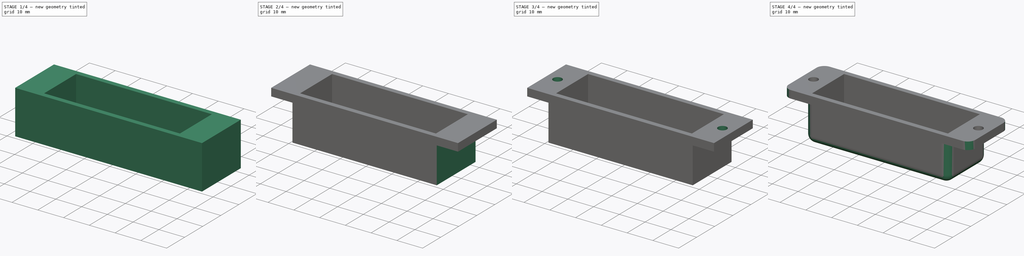
[diagram: build sequence overview — one tinted view per stage of 4, left to right]
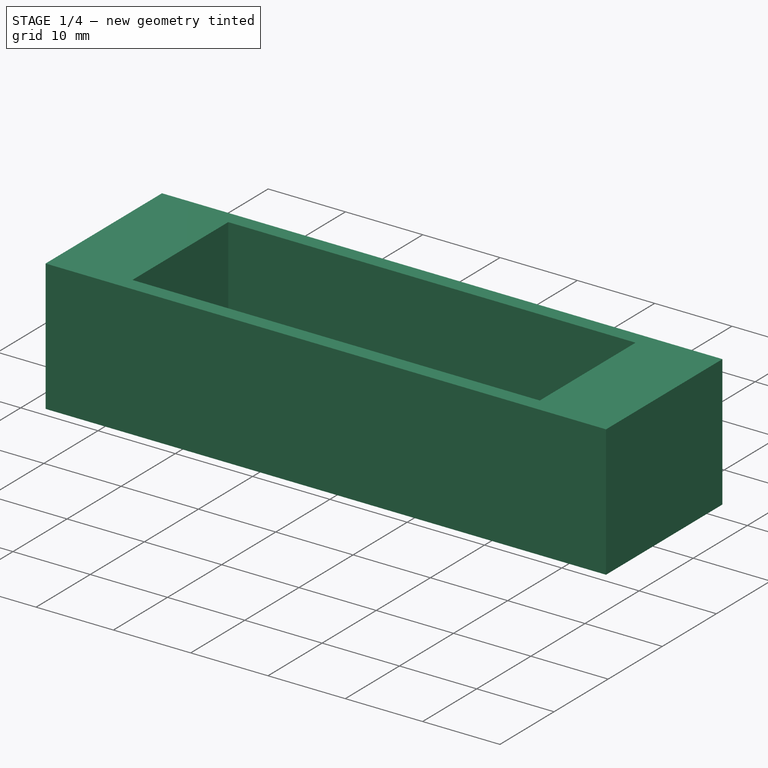
[diagram: stage 1 of 4 — iso view after this stage's code; geometry added in this stage tinted green]
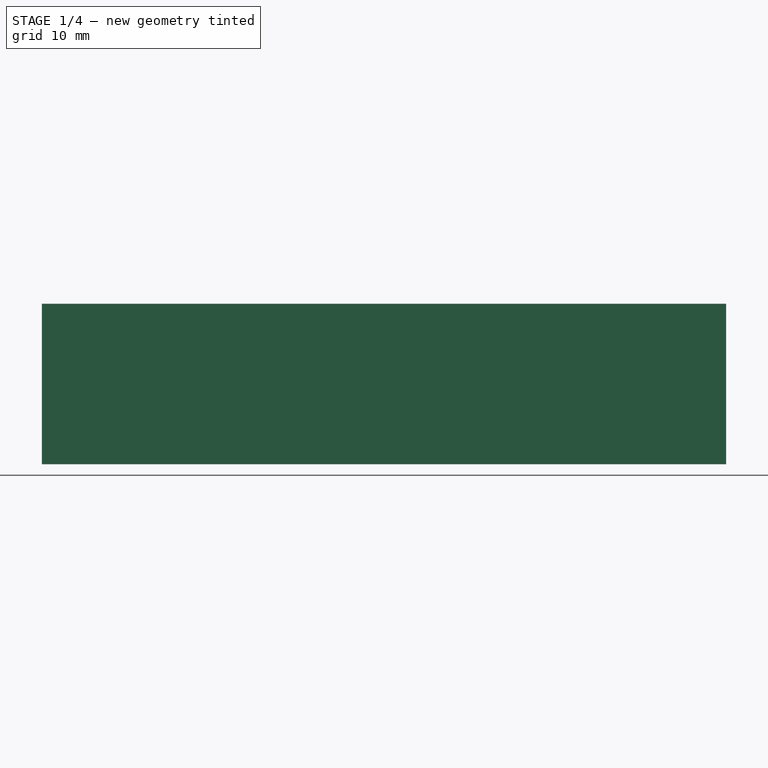
[diagram: stage 1 of 4 — front view after this stage's code; geometry added in this stage tinted green]
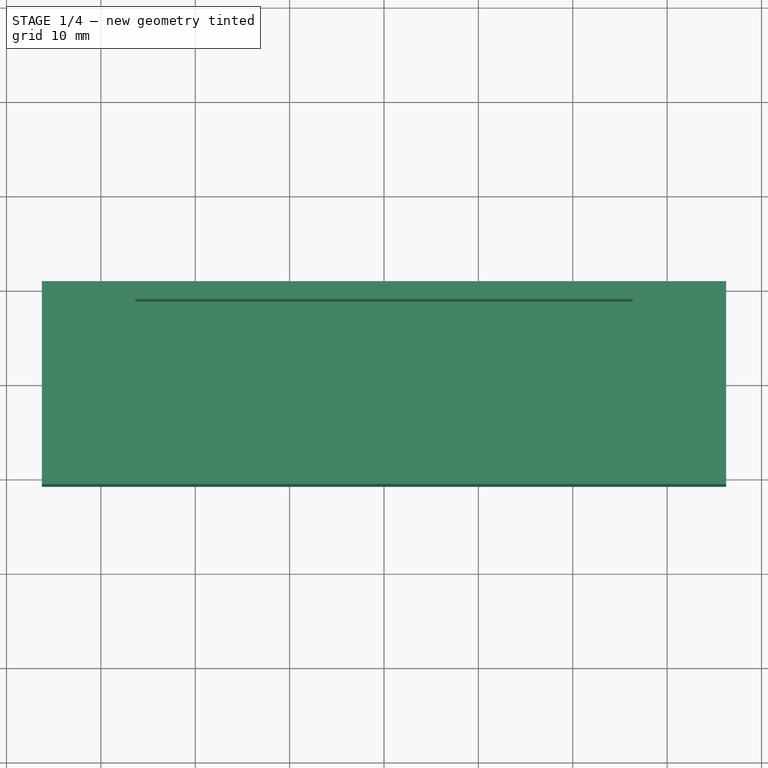
[diagram: stage 1 of 4 — top view after this stage's code; geometry added in this stage tinted green]
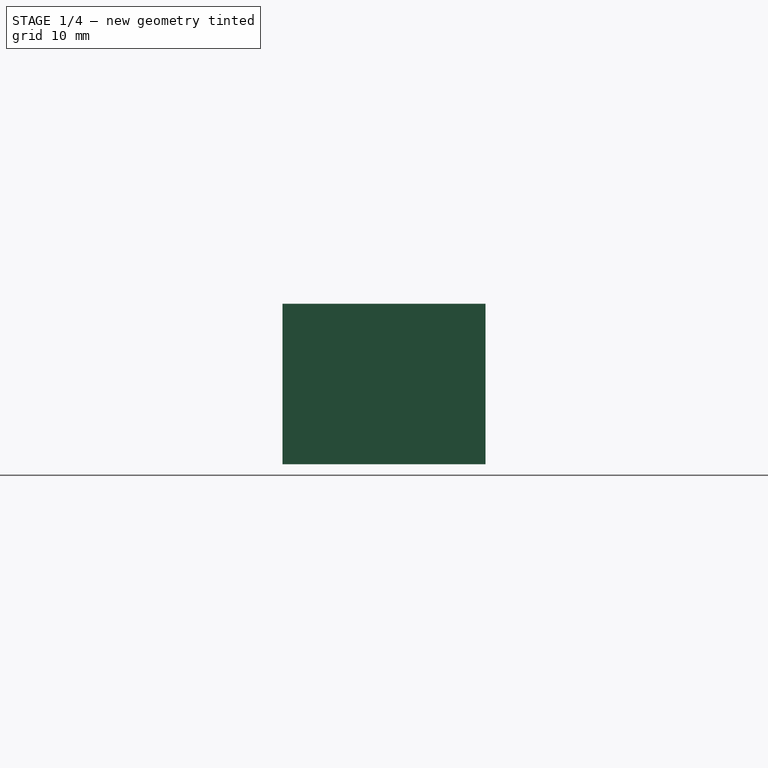
[diagram: stage 1 of 4 — right view after this stage's code; geometry added in this stage tinted green]
FCSTD DOCUMENT  (FreeCAD 0.16R6707 (Git))
Label: switch bracket
License: All rights reserved
LicenseURL: http://en.wikipedia.org/wiki/All_rights_reserved
objects: Sketcher::SketchObject×6, PartDesign::Pocket×4, PartDesign::Fillet×3, PartDesign::Pad×2
note: 21 computed .brp shape members not serialized (recipe doc carries the construction recipe); baked Part::Feature solids carry a one-line shape summary decoded from their .brp

FEATURE [Sketcher::SketchObject] Sketch
  sketch-geometry (4):
    g0: LineSegment StartX=-36.25 StartY=10.75 StartZ=0 EndX=36.25 EndY=10.75 EndZ=0
    g1: LineSegment StartX=36.25 StartY=10.75 StartZ=0 EndX=36.25 EndY=-10.75 EndZ=0
    g2: LineSegment StartX=36.25 StartY=-10.75 StartZ=0 EndX=-36.25 EndY=-10.75 EndZ=0
    g3: LineSegment StartX=-36.25 StartY=-10.75 StartZ=0 EndX=-36.25 EndY=10.75 EndZ=0
  constraints (12):
    c: Coincident(g0,g1)
    c: Coincident(g1,g2)
    c: Coincident(g2,g3)
    c: Coincident(g3,g0)
    c: Horizontal(g0)
    c: Horizontal(g2)
    c: Vertical(g1)
    c: Vertical(g3)
    c: DistanceX(g0,g0) = 72.5
    c: Symmetric(g0,g0,g-2)
    c: DistanceY(g3,g3) = 21.5
    c: Symmetric(g2,g0,g-1)
FEATURE [PartDesign::Pad] Pad
  Length = 17
  Length2 = 100
  Sketch = -> Sketch
  Type = 0
FEATURE [Sketcher::SketchObject] Sketch001
  Placement = pos=(0,0,17) rot=(0,0,1;0rad)
  Support = -> Pad [Face6]
  sketch-geometry (4):
    g0: LineSegment StartX=-26.35 StartY=8.85 StartZ=0 EndX=26.35 EndY=8.85 EndZ=0
    g1: LineSegment StartX=26.35 StartY=8.85 StartZ=0 EndX=26.35 EndY=-8.85 EndZ=0
    g2: LineSegment StartX=26.35 StartY=-8.85 StartZ=0 EndX=-26.35 EndY=-8.85 EndZ=0
    g3: LineSegment StartX=-26.35 StartY=-8.85 StartZ=0 EndX=-26.35 EndY=8.85 EndZ=0
  constraints (12):
    c: Coincident(g0,g1)
    c: Coincident(g1,g2)
    c: Coincident(g2,g3)
    c: Coincident(g3,g0)
    c: Horizontal(g0)
    c: Horizontal(g2)
    c: Vertical(g1)
    c: Vertical(g3)
    c: Symmetric(g0,g0,g-2)
    c: Symmetric(g0,g2,g-1)
    c: DistanceX(g0,g0) = 52.7
    c: DistanceY(g3,g3) = 17.7
FEATURE [PartDesign::Pocket] Pocket
  Length = 15
  Sketch = -> Sketch001
  Type = 0
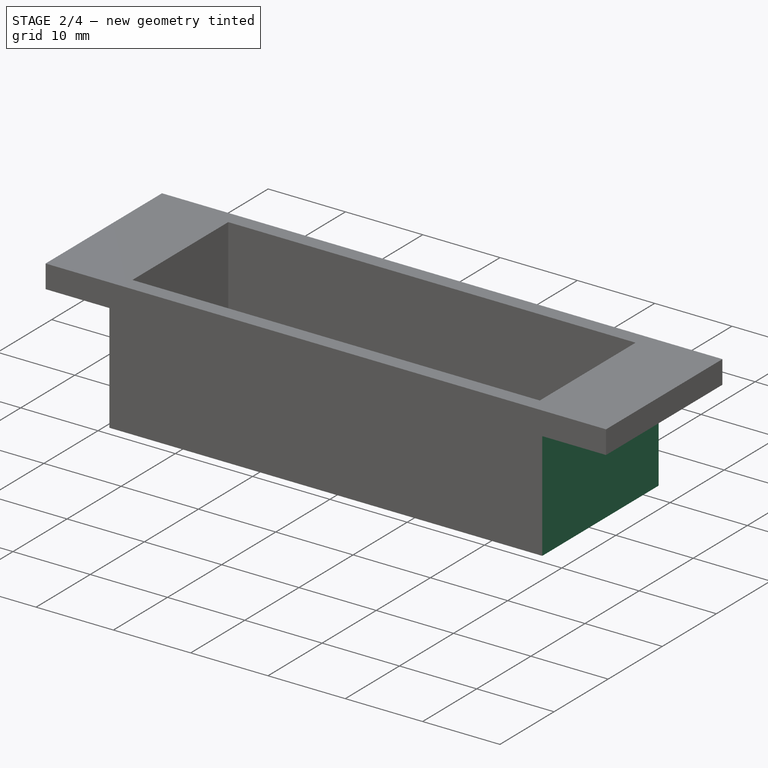
[diagram: stage 2 of 4 — iso view after this stage's code; geometry added in this stage tinted green]
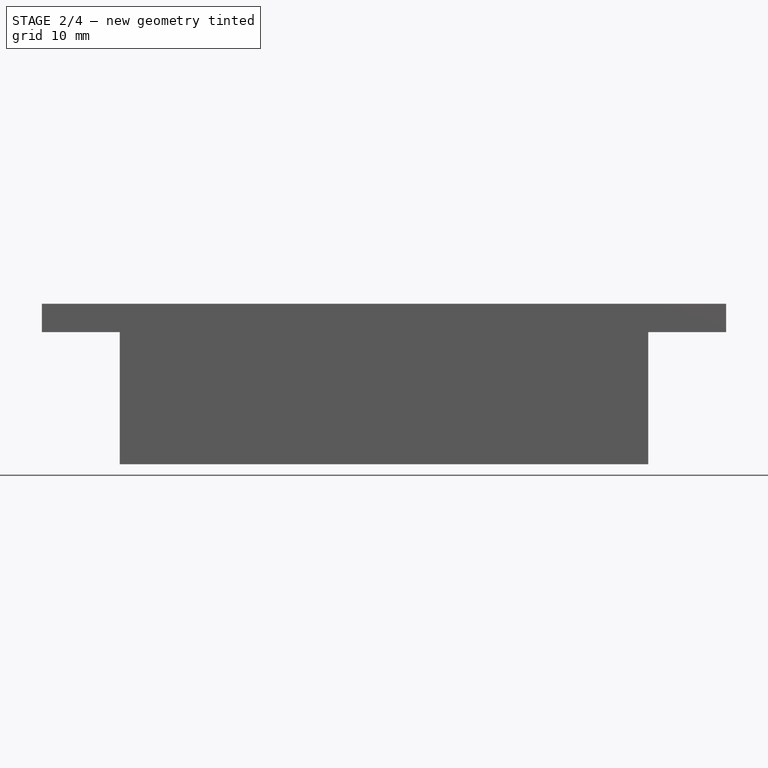
[diagram: stage 2 of 4 — front view after this stage's code; geometry added in this stage tinted green]
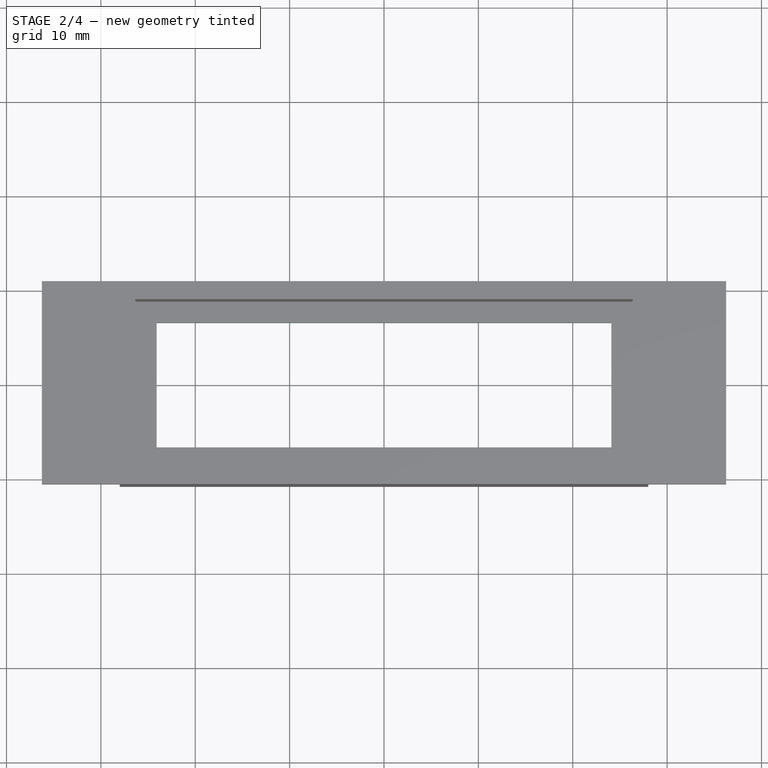
[diagram: stage 2 of 4 — top view after this stage's code; geometry added in this stage tinted green]
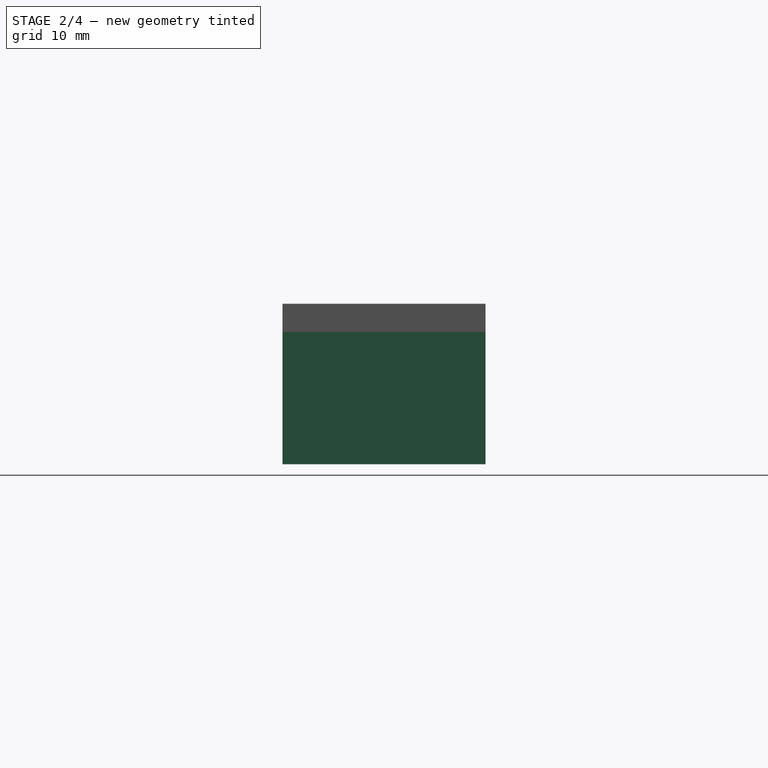
[diagram: stage 2 of 4 — right view after this stage's code; geometry added in this stage tinted green]
FEATURE [Sketcher::SketchObject] Sketch002
  Placement = pos=(0,0,2) rot=(0,0,1;0rad)
  Support = -> Pocket [Face11]
  sketch-geometry (4):
    g0: LineSegment StartX=-24.1 StartY=6.6 StartZ=0 EndX=24.1 EndY=6.6 EndZ=0
    g1: LineSegment StartX=24.1 StartY=6.6 StartZ=0 EndX=24.1 EndY=-6.6 EndZ=0
    g2: LineSegment StartX=24.1 StartY=-6.6 StartZ=0 EndX=-24.1 EndY=-6.6 EndZ=0
    g3: LineSegment StartX=-24.1 StartY=-6.6 StartZ=0 EndX=-24.1 EndY=6.6 EndZ=0
  constraints (12):
    c: Coincident(g0,g1)
    c: Coincident(g1,g2)
    c: Coincident(g2,g3)
    c: Coincident(g3,g0)
    c: Horizontal(g0)
    c: Horizontal(g2)
    c: Vertical(g1)
    c: Vertical(g3)
    c: Symmetric(g0,g0,g-2)
    c: Symmetric(g0,g2,g-1)
    c: DistanceX(g0,g0) = 48.2
    c: DistanceY(g3,g3) = 13.2
FEATURE [PartDesign::Pocket] Pocket001
  Length = 5
  Sketch = -> Sketch002
  Type = 0
FEATURE [Sketcher::SketchObject] Sketch003
  Placement = pos=(0,0,0) rot=(1,0,0;3.14159rad)
  Support = -> Pocket001 [Face4]
  sketch-geometry (8):
    g0: LineSegment StartX=-38 StartY=14 StartZ=0 EndX=-28 EndY=14 EndZ=0
    g1: LineSegment StartX=-28 StartY=14 StartZ=0 EndX=-28 EndY=-14.5347 EndZ=0
    g2: LineSegment StartX=-28 StartY=-14.5347 StartZ=0 EndX=-38 EndY=-14.5347 EndZ=0
    g3: LineSegment StartX=-38 StartY=-14.5347 StartZ=0 EndX=-38 EndY=14 EndZ=0
    g4: LineSegment StartX=28 StartY=14 StartZ=0 EndX=39.2029 EndY=14 EndZ=0
    g5: LineSegment StartX=39.2029 StartY=14 StartZ=0 EndX=39.2029 EndY=-14.538 EndZ=0
    g6: LineSegment StartX=39.2029 StartY=-14.538 StartZ=0 EndX=28 EndY=-14.538 EndZ=0
    g7: LineSegment StartX=28 StartY=-14.538 StartZ=0 EndX=28 EndY=14 EndZ=0
  constraints (16):
    c: Coincident(g0,g1)
    c: Coincident(g1,g2)
    c: Coincident(g2,g3)
    c: Coincident(g3,g0)
    c: Horizontal(g0)
    c: Horizontal(g2)
    c: Vertical(g1)
    c: Vertical(g3)
    c: Coincident(g4,g5)
    c: Coincident(g5,g6)
    c: Coincident(g6,g7)
    c: Coincident(g7,g4)
    c: Horizontal(g4)
    c: Horizontal(g6)
    c: Vertical(g5)
    c: Vertical(g7)
FEATURE [PartDesign::Pocket] Pocket002
  Length = 14
  Sketch = -> Sketch003
  Type = 0
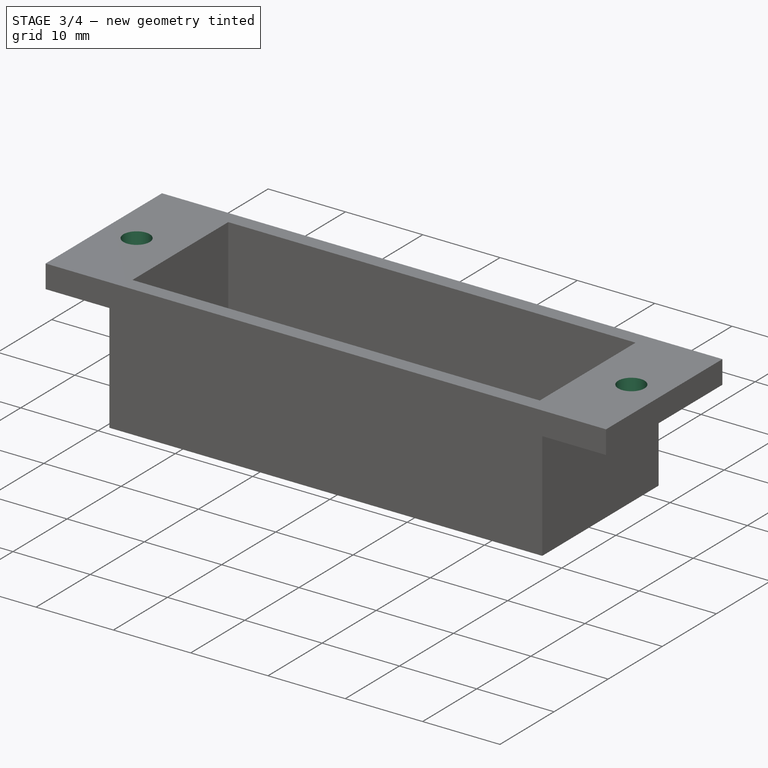
[diagram: stage 3 of 4 — iso view after this stage's code; geometry added in this stage tinted green]
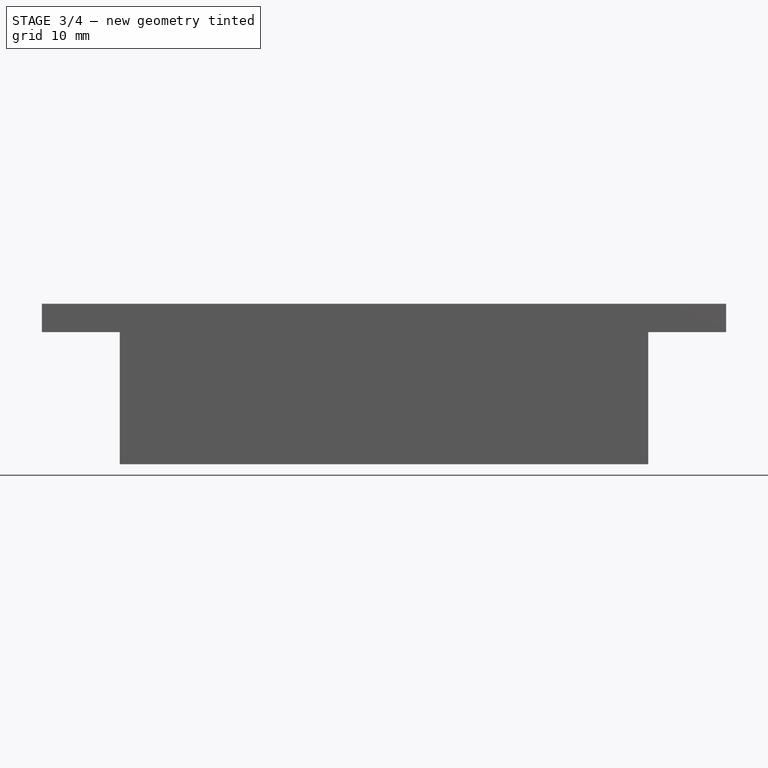
[diagram: stage 3 of 4 — front view after this stage's code; geometry added in this stage tinted green]
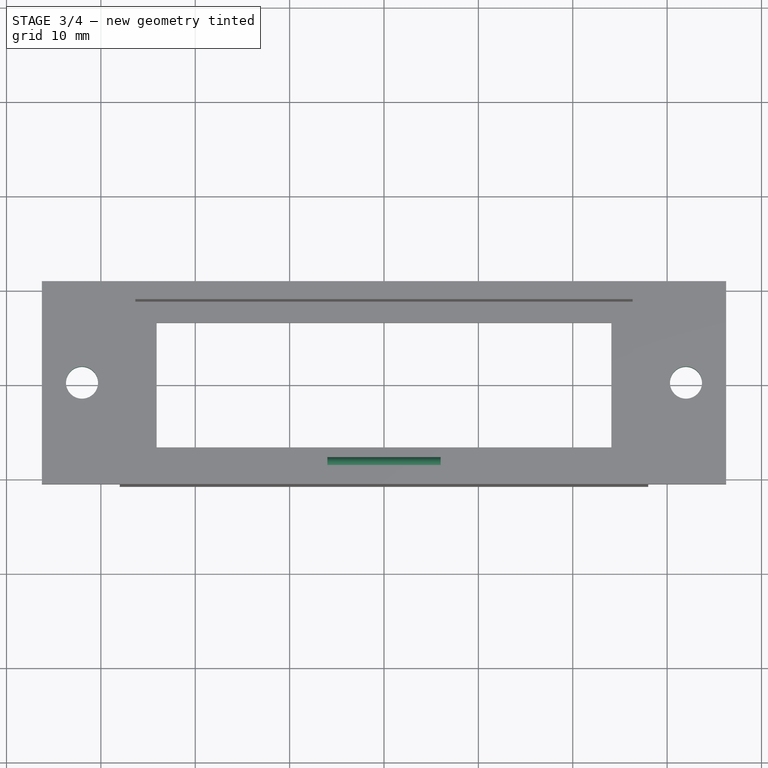
[diagram: stage 3 of 4 — top view after this stage's code; geometry added in this stage tinted green]
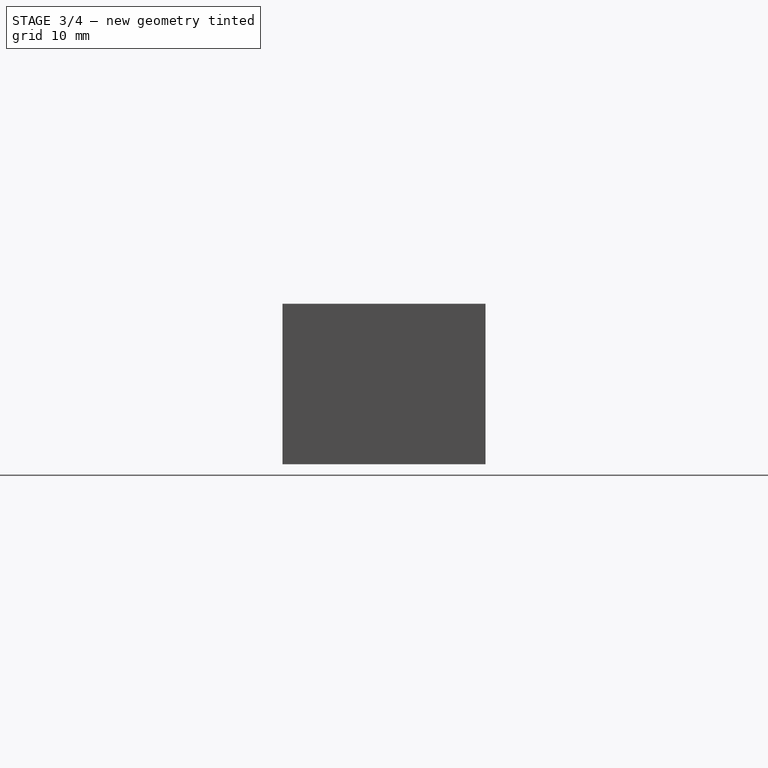
[diagram: stage 3 of 4 — right view after this stage's code; geometry added in this stage tinted green]
FEATURE [Sketcher::SketchObject] Sketch004
  Placement = pos=(0,0,14) rot=(1,0,0;3.14159rad)
  Support = -> Pocket002 [Face6]
  sketch-geometry (2):
    g0: Circle CenterX=32 CenterY=0 CenterZ=0 NormalX=0 NormalY=0 NormalZ=1 Radius=1.7
    g1: Circle CenterX=-32 CenterY=0 CenterZ=0 NormalX=0 NormalY=0 NormalZ=1 Radius=1.7
  constraints (4):
    c: PointOnObject(g0,g-1)
    c: PointOnObject(g1,g-1)
    c: Radius(g1) = 1.7
    c: Equal(g1,g0)
FEATURE [PartDesign::Pocket] Pocket003
  Length = 5
  Sketch = -> Sketch004
  Type = 0
FEATURE [Sketcher::SketchObject] Sketch005
  ExternalGeometry = -> [Pocket003]
  Placement = pos=(0,-8.85,0) rot=(0,0.707107,0.707107;3.14159rad)
  Support = -> Pocket003 [Face18]
  sketch-geometry (5):
    g0: LineSegment [constr] StartX=-31.242 StartY=14.2 StartZ=0 EndX=34.6182 EndY=14.2 EndZ=0
    g1: LineSegment StartX=-6 StartY=15.2 StartZ=0 EndX=6 EndY=15.2 EndZ=0
    g2: LineSegment StartX=6 StartY=15.2 StartZ=0 EndX=6 EndY=13.2 EndZ=0
    g3: LineSegment StartX=6 StartY=13.2 StartZ=0 EndX=-6 EndY=13.2 EndZ=0
    g4: LineSegment StartX=-6 StartY=13.2 StartZ=0 EndX=-6 EndY=15.2 EndZ=0
  constraints (12):
    c: Horizontal(g0)
    c: DistanceY(g-3,g0) = 12.2
    c: Coincident(g1,g2)
    c: Coincident(g2,g3)
    c: Coincident(g3,g4)
    c: Coincident(g4,g1)
    c: Horizontal(g1)
    c: Horizontal(g3)
    c: Vertical(g2)
    c: Vertical(g4)
    c: Symmetric(g1,g2,g0)
    c: DistanceY(g4,g4) = 2
FEATURE [PartDesign::Pad] Pad001
  Length = 1
  Length2 = 100
  Sketch = -> Sketch005
  Type = 0
FEATURE [PartDesign::Fillet] Fillet
  Base = -> Pad001 [Edge65,Edge60]
  Radius = 0.99
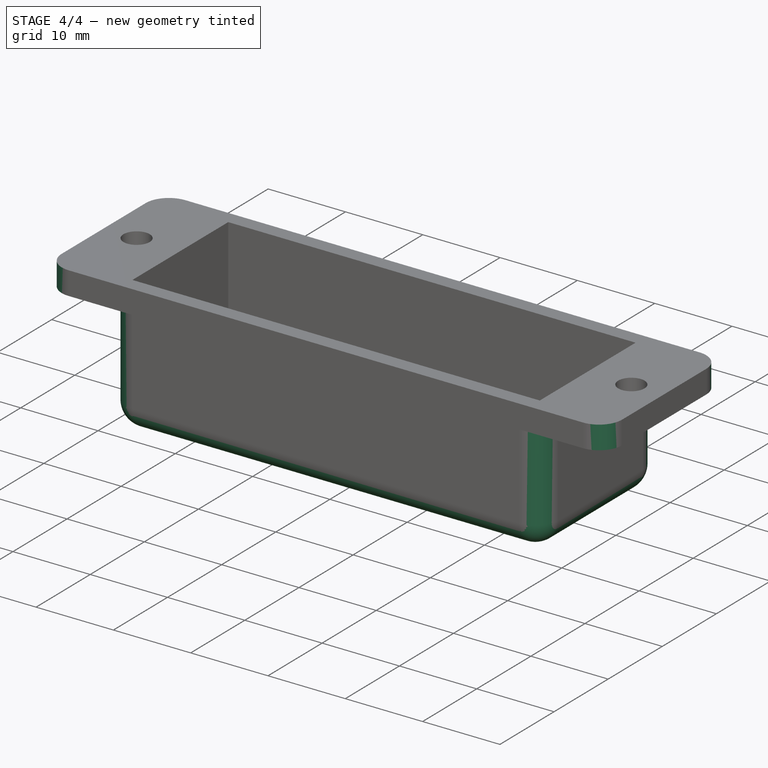
[diagram: stage 4 of 4 — iso view after this stage's code; geometry added in this stage tinted green]
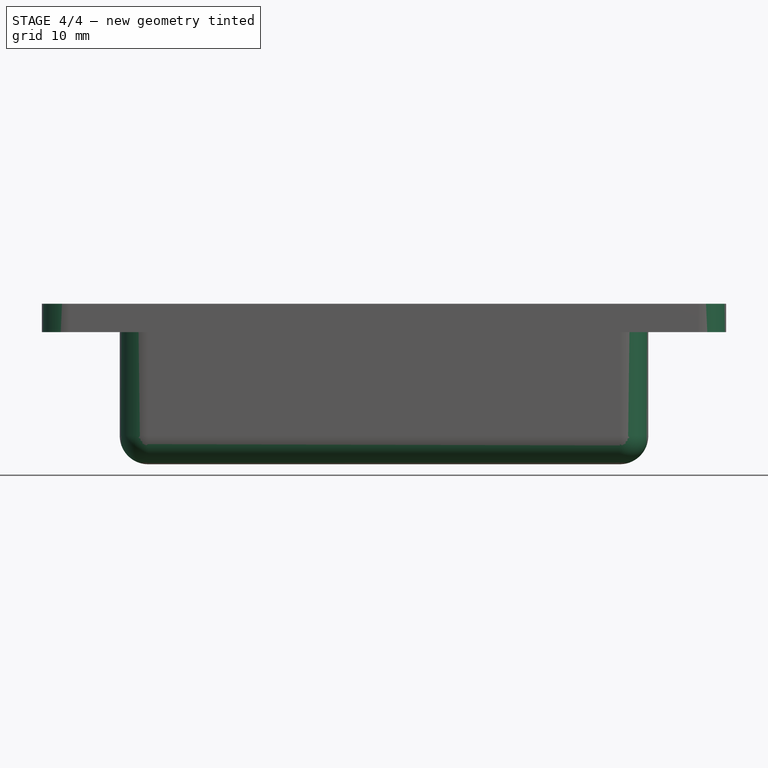
[diagram: stage 4 of 4 — front view after this stage's code; geometry added in this stage tinted green]
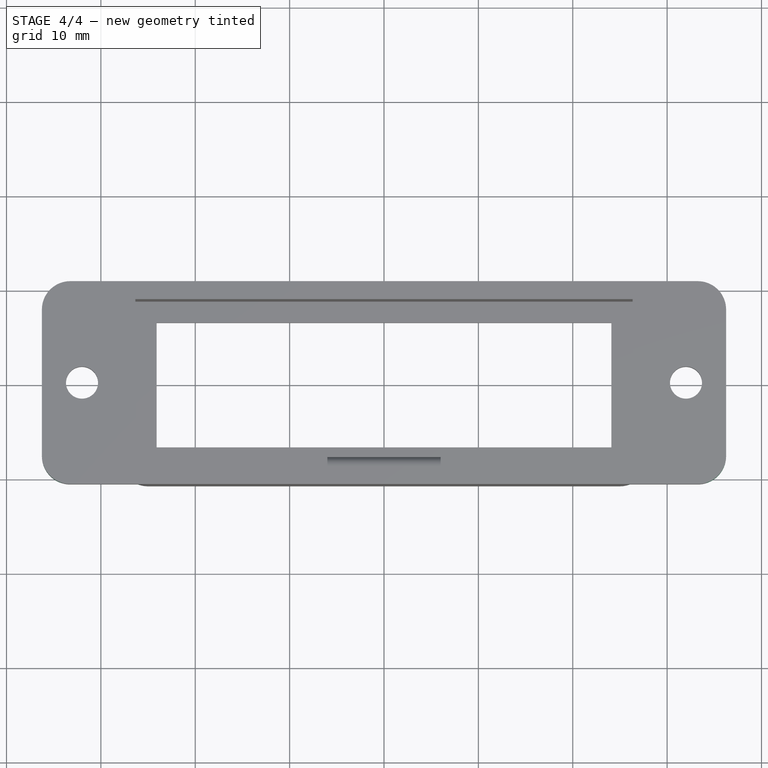
[diagram: stage 4 of 4 — top view after this stage's code; geometry added in this stage tinted green]
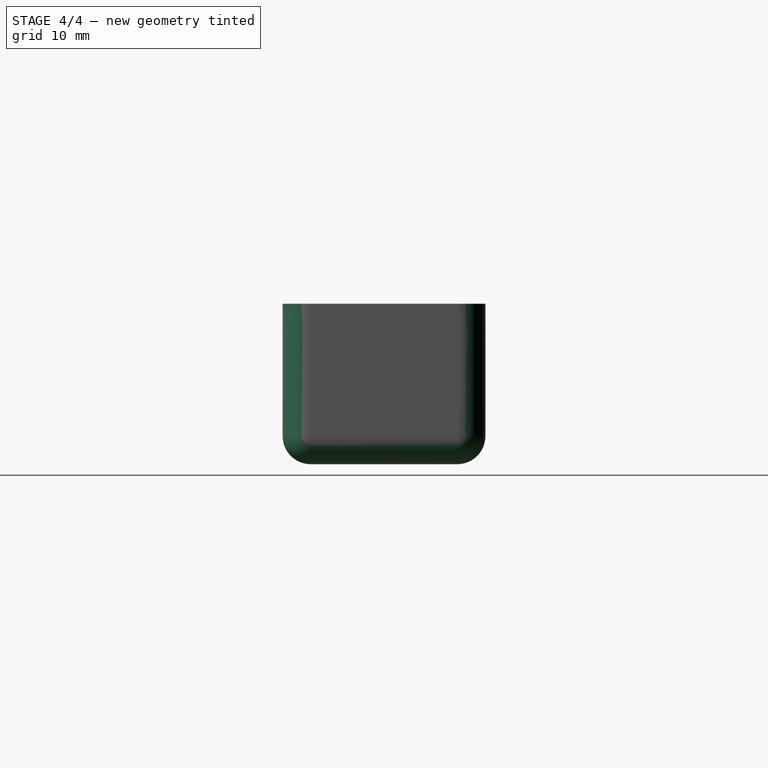
[diagram: stage 4 of 4 — right view after this stage's code; geometry added in this stage tinted green]
FEATURE [PartDesign::Fillet] Fillet001
  Base = -> Fillet [Edge46,Edge51,Edge47,Edge49]
  Radius = 3
FEATURE [PartDesign::Fillet] Fillet002
  Base = -> Fillet001 [Edge36,Edge56,Edge18,Edge57,Edge20,Edge35,Edge37,Edge17]
  Radius = 3
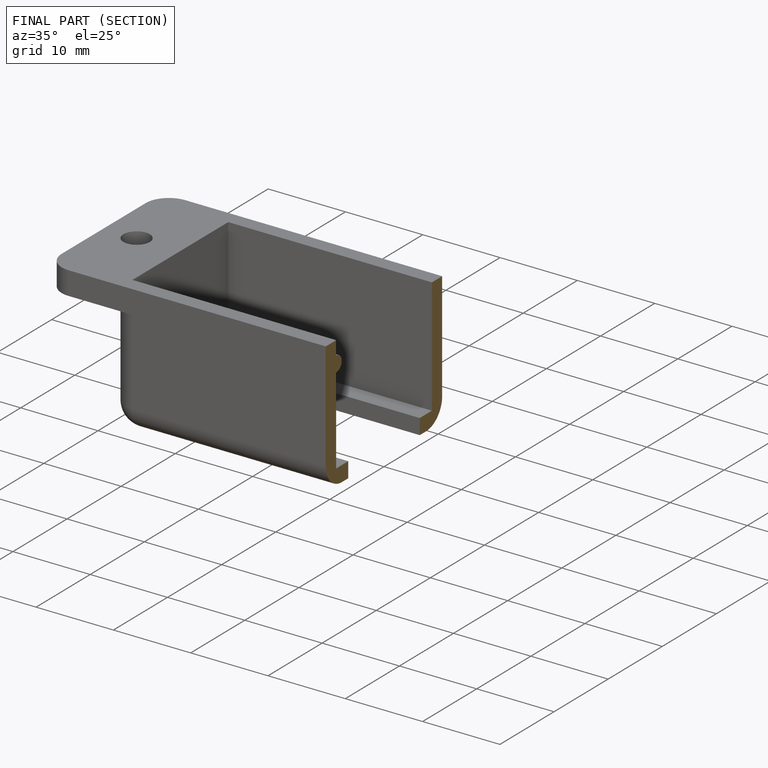
[diagram: finished part — half-section view (interior)]
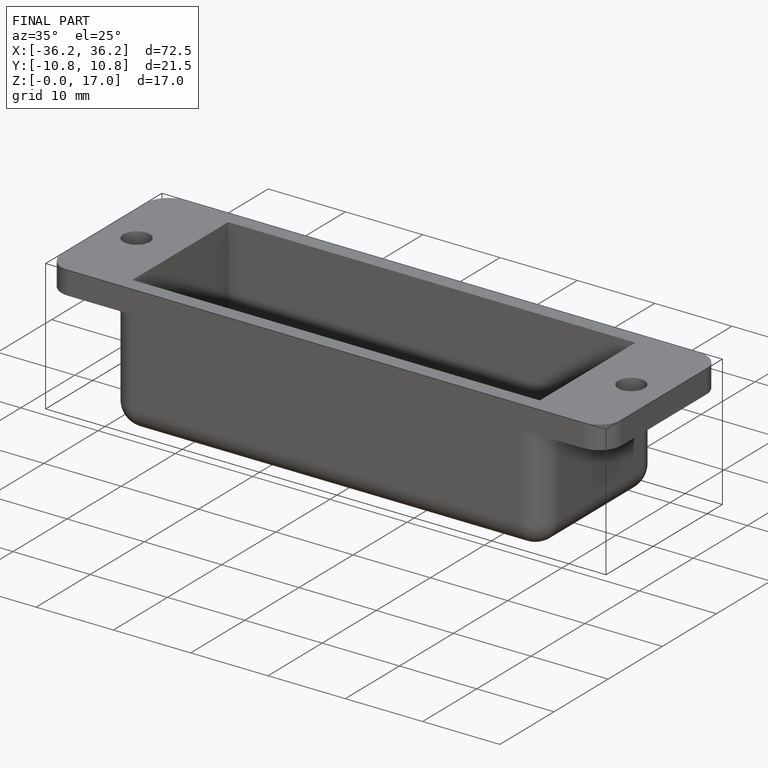
[diagram: finished part — iso view with bounding-box wireframe]
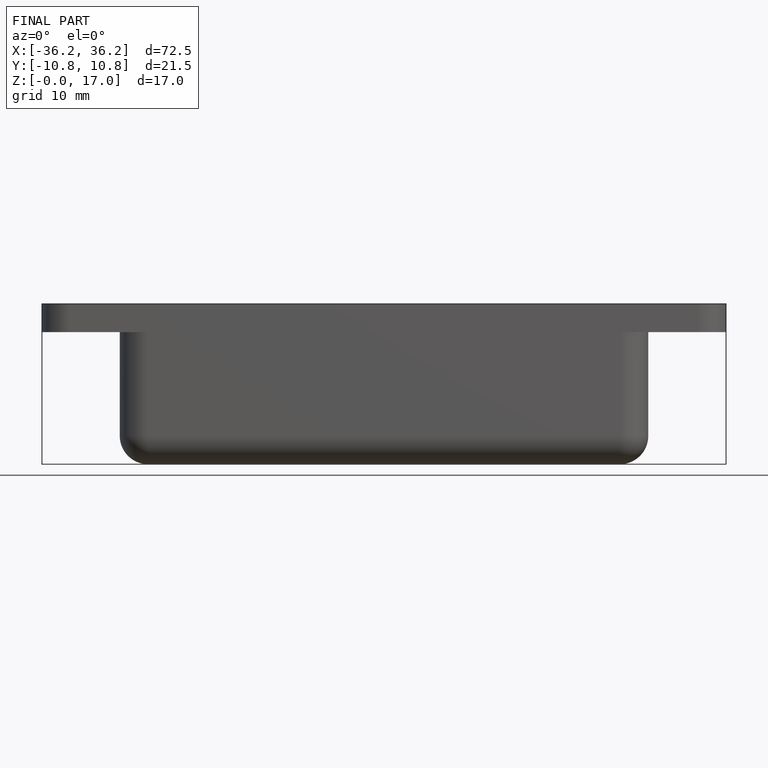
[diagram: finished part — front view with bounding-box wireframe]
